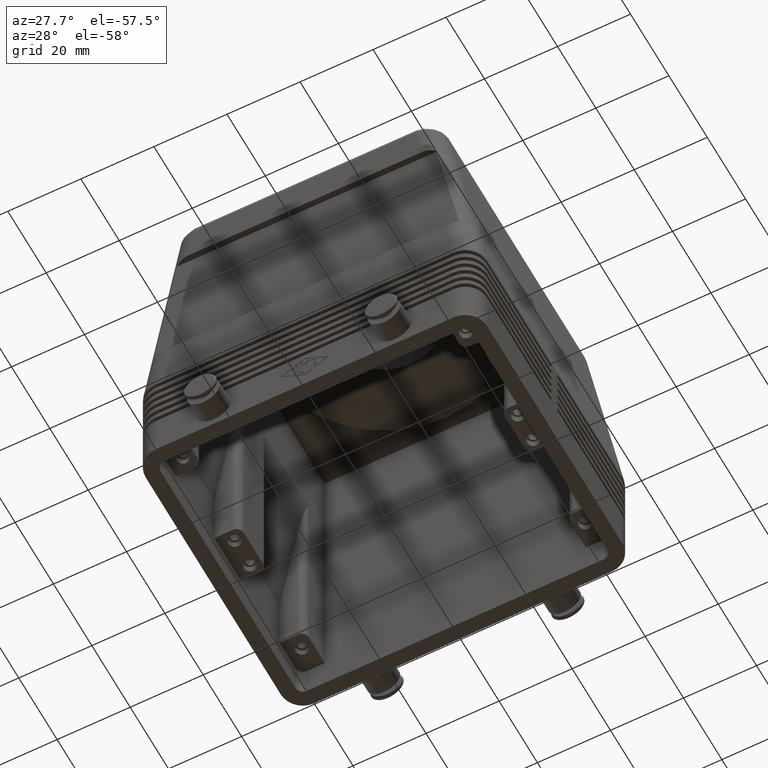
[diagram: clean part render]
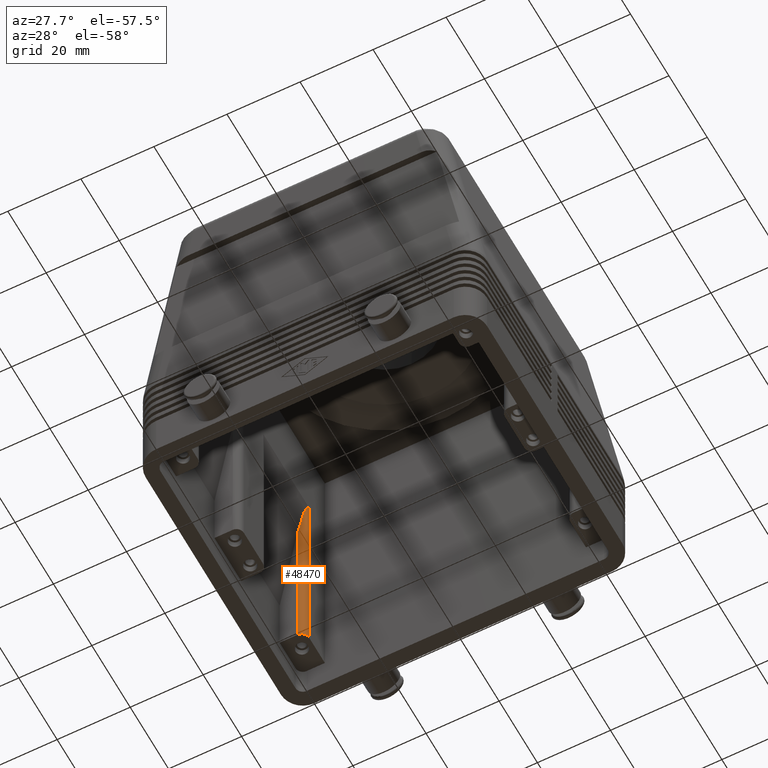
[diagram: same view with one face highlighted and labeled with its STEP entity id]
A machine part, auxiliary view. The second image highlights one B-rep face of the part: STEP entity #48470.
In plain terms, the highlighted cylindrical surface (edge-blend (fillet) strip) has radius 2 mm, axis along (0, 0, -1).
Its self-contained STEP definition (entity closure, byte-faithful):
#47990=CARTESIAN_POINT('',(-37.75,29.0000000000001,64.090361914237));
#48000=DIRECTION('',(0.,0.,-1.));
#48010=DIRECTION('',(-1.,0.,-0.));
#48020=AXIS2_PLACEMENT_3D('',#47990,#48000,#48010);
#48030=CYLINDRICAL_SURFACE('',#48020,2.00000000000008);
#48040=CARTESIAN_POINT('',(-35.75,29.,67.590883633376));
#48050=CARTESIAN_POINT('',(-35.75,28.1715731565282,67.590883633376));
#48060=CARTESIAN_POINT('',(-36.3357860980987,27.5857867771552,
64.0903639431776));
#48070=(BOUNDED_CURVE() B_SPLINE_CURVE(2,(#48040,#48050,#48060),
.UNSPECIFIED.,.F.,.F.) B_SPLINE_CURVE_WITH_KNOTS((3,3),(0.,1.),
.UNSPECIFIED.) CURVE() GEOMETRIC_REPRESENTATION_ITEM() 
RATIONAL_B_SPLINE_CURVE((1.,0.923879556388999,0.99999995224459)) 
REPRESENTATION_ITEM(''));
#48080=CARTESIAN_POINT('',(-35.75,29.,67.5908836333761));
#48090=VERTEX_POINT('',#48080);
#48100=CARTESIAN_POINT('',(-36.3357864376269,27.5857864376269,
64.090361914237));
#48110=VERTEX_POINT('',#48100);
#48120=EDGE_CURVE('',#48090,#48110,#48070,.T.);
#48130=ORIENTED_EDGE('',*,*,#48120,.T.);
#48140=CARTESIAN_POINT('',(-35.75,29.,9.));
#48150=DIRECTION('',(0.,0.,1.));
#48160=VECTOR('',#48150,1.);
#48170=LINE('',#48140,#48160);
#48180=CARTESIAN_POINT('',(-35.75,29.,9.));
#48190=VERTEX_POINT('',#48180);
#48200=EDGE_CURVE('',#48190,#48090,#48170,.T.);
#48210=ORIENTED_EDGE('',*,*,#48200,.T.);
#48220=CARTESIAN_POINT('',(-37.75,29.0000000000001,9.));
#48230=DIRECTION('',(-0.,-0.,1.));
#48240=DIRECTION('',(-1.,0.,0.));
#48250=AXIS2_PLACEMENT_3D('',#48220,#48230,#48240);
#48260=CIRCLE('',#48250,2.00000000000008);
#48270=CARTESIAN_POINT('',(-37.75,27.,9.));
#48280=VERTEX_POINT('',#48270);
#48290=EDGE_CURVE('',#48280,#48190,#48260,.T.);
#48300=ORIENTED_EDGE('',*,*,#48290,.T.);
#48310=CARTESIAN_POINT('',(-37.75,27.,55.6393549045099));
#48320=DIRECTION('',(0.,0.,-1.));
#48330=VECTOR('',#48320,1.);
#48340=LINE('',#48310,#48330);
#48350=CARTESIAN_POINT('',(-37.75,27.,55.6393549045099));
#48360=VERTEX_POINT('',#48350);
#48370=EDGE_CURVE('',#48360,#48280,#48340,.T.);
#48380=ORIENTED_EDGE('',*,*,#48370,.T.);
#48390=CARTESIAN_POINT('',(-36.3357864376269,27.5857864376269,
64.090361914237));
#48400=CARTESIAN_POINT('',(-36.9215728752538,27.,60.5898401950979));
#48410=CARTESIAN_POINT('',(-37.75,27.,55.6393549045099));
#48420=(BOUNDED_CURVE() B_SPLINE_CURVE(2,(#48390,#48400,#48410),
.UNSPECIFIED.,.F.,.F.) B_SPLINE_CURVE_WITH_KNOTS((3,3),(0.,1.),
.UNSPECIFIED.) CURVE() GEOMETRIC_REPRESENTATION_ITEM() 
RATIONAL_B_SPLINE_CURVE((1.,0.923879532511287,1.)) REPRESENTATION_ITEM(
''));
#48430=EDGE_CURVE('',#48110,#48360,#48420,.T.);
#48440=ORIENTED_EDGE('',*,*,#48430,.T.);
#48450=EDGE_LOOP('',(#48440,#48380,#48300,#48210,#48130));
#48460=FACE_OUTER_BOUND('',#48450,.T.);
#48470=ADVANCED_FACE('',(#48460),#48030,.T.);